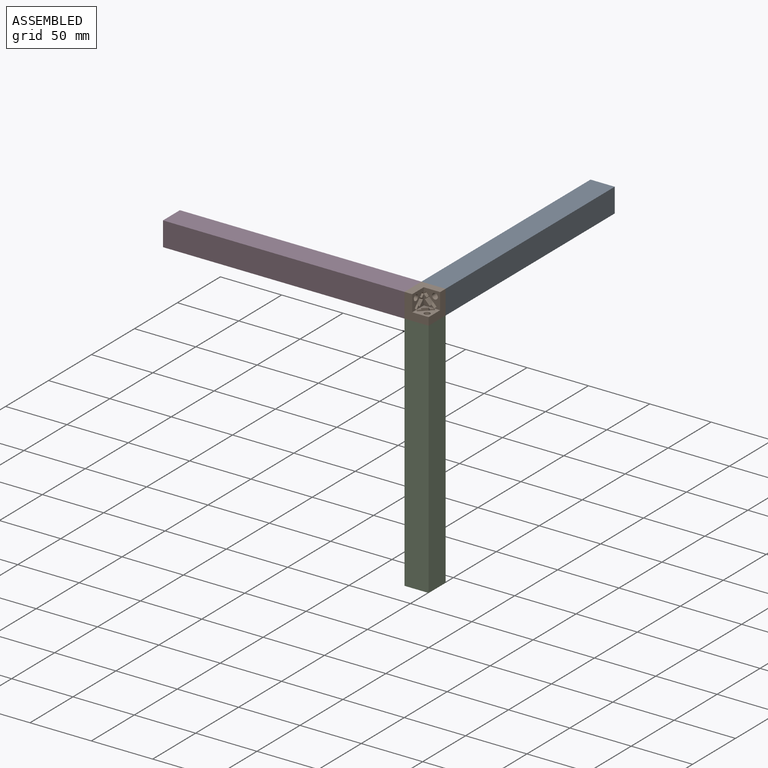
[diagram: assembled view]
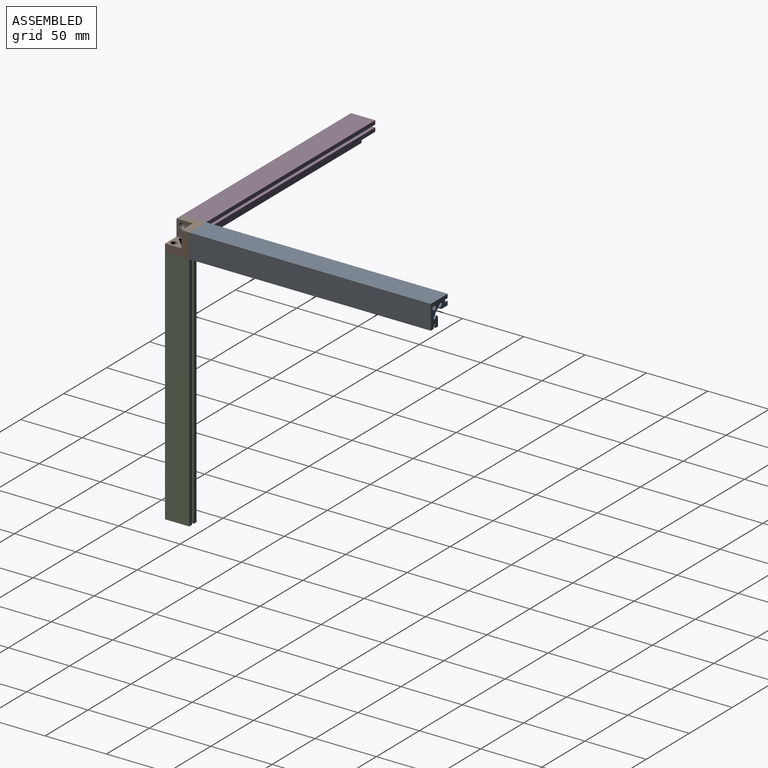
[diagram: assembled view, second angle]
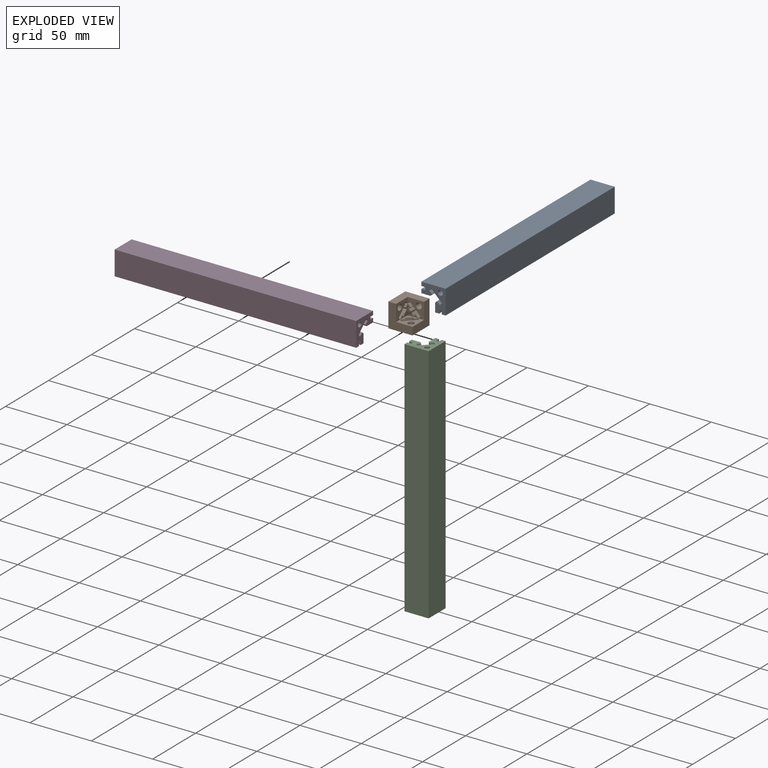
[diagram: exploded view]
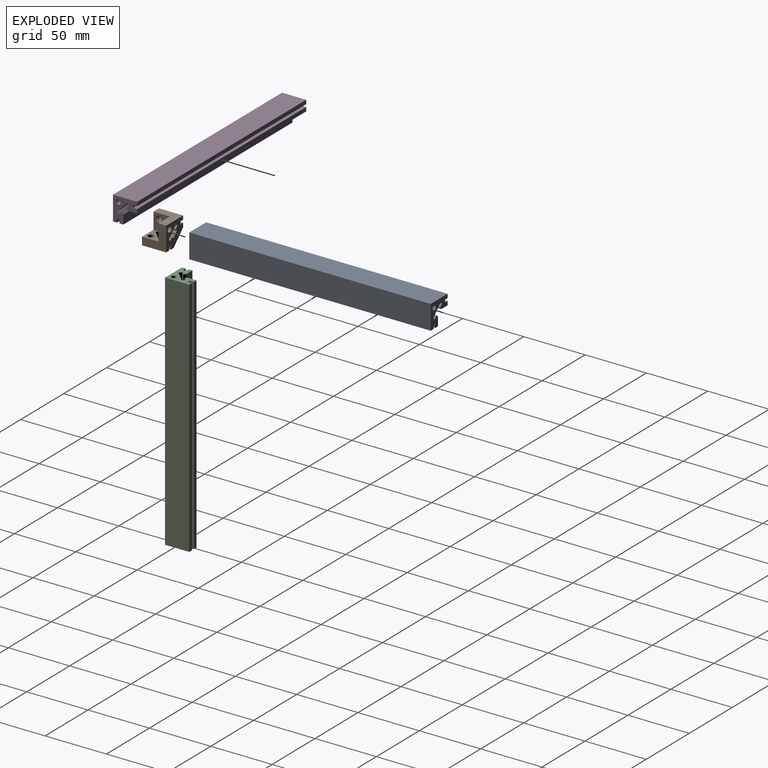
[diagram: exploded view, second angle]
ASSEMBLY  parts=4 mates=3
PART A: 24 faces, bbox 19.7x19.7x196.9 mm
  f0: plane 196.85x1.8mm, normal (-0.71,-0.71,0), area 500mm2, adj f1,f21,f22,f23
  f1: plane 196.85x8.62mm, normal (-0.71,0.71,0), area 2400mm2, adj f0,f2,f22,f23
  f2: plane 196.85x1.8mm, normal (0.71,0.71,0), area 500mm2, adj f1,f3,f22,f23
  f3: plane 196.85x2.34mm, normal (0.71,-0.71,0), area 650mm2, adj f2,f4,f22,f23
  f4: plane 196.85x1.44mm, normal (0.71,0.71,0), area 400mm2, adj f3,f5,f22,f23
  f5: plane 196.85x7.25mm, normal (0,1,0), area 1426.8mm2, adj f4,f6,f22,f23
  f6: plane 196.85x3.18mm, normal (-1,0,0), area 625mm2, adj f5,f7,f22,f23
  f7: plane 196.85x3.18mm, normal (0,-1,0), area 625mm2, adj f6,f8,f22,f23
  f8: plane 196.85x2.16mm, normal (-1,0,0), area 425mm2, adj f7,f9,f22,f23
  f9: plane 196.85x3.18mm, normal (0,1,0), area 625mm2, adj f8,f10,f22,f23
  f10: plane 196.85x3.18mm, normal (-1,0,0), area 625mm2, adj f9,f11,f22,f23
  f11: plane 196.85x19.71mm, normal (0,-1,0), area 3879.6mm2, adj f10,f12,f22,f23
  f12: plane 196.85x19.71mm, normal (1,0,0), area 3879.6mm2, adj f11,f13,f22,f23
  f13: plane 196.85x3.18mm, normal (0,1,0), area 625mm2, adj f12,f14,f22,f23
  f14: plane 196.85x3.18mm, normal (-1,0,0), area 625mm2, adj f13,f15,f22,f23
  f15: plane 196.85x2.16mm, normal (0,1,0), area 425mm2, adj f14,f16,f22,f23
  f16: plane 196.85x3.18mm, normal (1,0,0), area 625mm2, adj f15,f17,f22,f23
  f17: plane 196.85x3.18mm, normal (0,1,0), area 625mm2, adj f16,f18,f22,f23
  f18: plane 196.85x7.25mm, normal (-1,0,0), area 1426.8mm2, adj f17,f19,f22,f23
  f19: plane 196.85x1.44mm, normal (-0.71,-0.71,0), area 400mm2, adj f18,f21,f22,f23
  f20: cylinder r=1.98mm len=196.85mm, axis (0,0,-1), area 2454.4mm2, adj f22,f23
  f21: plane 196.85x2.34mm, normal (0.71,-0.71,0), area 650mm2, adj f0,f19,f22,f23
  f22: plane 19.71x19.71mm, normal (0,0,1), area 202.4mm2, adj f0,f1,f2,f3,f4,f5,f6,f7
  f23: plane 19.71x19.71mm, normal (0,0,-1), area 202.4mm2, adj f0,f1,f2,f3,f4,f5,f6,f7
PART B: 52 faces, bbox 19.7x19.7x19.7 mm
  f0: plane 19.71x19.71mm, normal (-1,0,0), area 253.2mm2, adj f3,f4,f7,f18,f25,f26,f28,f38
  f1: plane 13.36x13.36mm, normal (1,0,0), area 92.5mm2, adj f5,f7,f18,f19,f43,f48,f49,f51
  f2: plane 8.62x8.62mm, normal (1,0,0), area 25.8mm2, adj f6,f20,f44,f45,f46,f47,f50
  f3: plane 19.71x19.71mm, normal (0,1,0), area 253.2mm2, adj f0,f4,f7,f17,f21,f23,f24,f29
  f4: plane 19.71x19.71mm, normal (0,0,1), area 253.2mm2, adj f0,f3,f8,f9,f10,f11,f12,f13
  f5: plane 13.36x13.36mm, normal (0,-1,0), area 92.5mm2, adj f1,f7,f17,f19,f29,f30,f36,f37
  f6: plane 8.62x8.62mm, normal (0,-1,0), area 25.8mm2, adj f2,f20,f31,f32,f33,f34,f35
  f7: plane 19.71x19.71mm, normal (0,0,-1), area 210mm2, adj f0,f1,f3,f5,f17,f18
  f8: plane 6.35x1.8mm, normal (-0.71,-0.71,0), area 16.1mm2, adj f4,f9,f16,f19
  f9: plane 8.62x8.62mm, normal (-0.71,0.71,0), area 77.4mm2, adj f4,f8,f10,f19
  f10: plane 6.35x1.8mm, normal (0.71,0.71,0), area 16.1mm2, adj f4,f9,f11,f19
  f11: plane 6.35x2.34mm, normal (0.71,-0.71,0), area 21mm2, adj f4,f10,f12,f20
  f12: plane 6.35x1.44mm, normal (0.71,0.71,0), area 12.9mm2, adj f4,f11,f13,f20
  f13: plane 6.35x3.95mm, normal (0.71,-0.71,0), area 35.5mm2, adj f4,f12,f14,f20
  f14: plane 6.35x1.44mm, normal (-0.71,-0.71,0), area 12.9mm2, adj f4,f13,f16,f20
  f15: cylinder r=2.38mm len=6.35mm, axis (0,0,-1), area 95mm2, adj f4,f19
  f16: plane 6.35x2.34mm, normal (0.71,-0.71,0), area 21mm2, adj f4,f8,f14,f20
  f17: plane 19.71x19.71mm, normal (1,0,0), area 210mm2, adj f3,f4,f5,f7,f18,f19
  f18: plane 19.71x19.71mm, normal (0,-1,0), area 210mm2, adj f0,f1,f4,f7,f17,f19
  f19: plane 13.36x13.36mm, normal (0,0,-1), area 92.5mm2, adj f1,f5,f8,f9,f10,f15,f17,f18
  f20: plane 8.62x8.62mm, normal (0,0,-1), area 25.8mm2, adj f2,f6,f11,f12,f13,f14,f16
  f21: plane 3.18x3.18mm, normal (1,0,0), area 10.1mm2, adj f3,f4,f22,f24
  f22: plane 3.18x2.16mm, normal (0,1,0), area 6.9mm2, adj f4,f21,f23,f24
  f23: plane 3.18x3.18mm, normal (-1,0,0), area 10.1mm2, adj f3,f4,f22,f24
  f24: plane 3.18x2.16mm, normal (0,0,1), area 6.9mm2, adj f3,f21,f22,f23
  f25: plane 3.18x3.18mm, normal (0,-1,0), area 10.1mm2, adj f0,f4,f27,f28
  f26: plane 3.18x3.18mm, normal (0,1,0), area 10.1mm2, adj f0,f4,f27,f28
  f27: plane 3.18x2.16mm, normal (-1,0,0), area 6.9mm2, adj f4,f25,f26,f28
  f28: plane 3.18x2.16mm, normal (0,0,1), area 6.9mm2, adj f0,f25,f26,f27
  f29: plane 8.62x8.62mm, normal (-0.71,0,0.71), area 77.4mm2, adj f3,f5,f30,f36
  f30: plane 6.35x1.8mm, normal (-0.71,0,-0.71), area 16.1mm2, adj f3,f5,f29,f31
  f31: plane 6.35x2.34mm, normal (0.71,0,-0.71), area 21mm2, adj f3,f6,f30,f32
  f32: plane 6.35x1.44mm, normal (-0.71,0,-0.71), area 12.9mm2, adj f3,f6,f31,f33
  f33: plane 6.35x3.95mm, normal (0.71,0,-0.71), area 35.5mm2, adj f3,f6,f32,f34
  f34: plane 6.35x1.44mm, normal (0.71,0,0.71), area 12.9mm2, adj f3,f6,f33,f35
  f35: plane 6.35x2.34mm, normal (0.71,0,-0.71), area 21mm2, adj f3,f6,f34,f36
  f36: plane 6.35x1.8mm, normal (0.71,0,0.71), area 16.1mm2, adj f3,f5,f29,f35
  f37: cylinder r=2.38mm len=6.35mm, axis (0,-1,0), area 95mm2, adj f3,f5
  f38: plane 3.18x3.18mm, normal (0,0,-1), area 10.1mm2, adj f0,f3,f39,f41
  f39: plane 3.18x2.16mm, normal (-1,0,0), area 6.9mm2, adj f3,f38,f40,f41
  f40: plane 3.18x3.18mm, normal (0,0,1), area 10.1mm2, adj f0,f3,f39,f41
  f41: plane 3.18x2.16mm, normal (0,1,0), area 6.9mm2, adj f0,f38,f39,f40
  f42: plane 11.07x11.07mm, normal (-0.58,0.58,0.58), area 106.2mm2, adj f0,f3,f4
  f43: plane 8.62x8.62mm, normal (0,0.71,0.71), area 77.4mm2, adj f0,f1,f48,f49
  f44: plane 6.35x1.44mm, normal (0,-0.71,0.71), area 12.9mm2, adj f0,f2,f45,f50
  f45: plane 6.35x3.95mm, normal (0,-0.71,-0.71), area 35.5mm2, adj f0,f2,f44,f46
  f46: plane 6.35x1.44mm, normal (0,0.71,-0.71), area 12.9mm2, adj f0,f2,f45,f47
  f47: plane 6.35x2.34mm, normal (0,-0.71,-0.71), area 21mm2, adj f0,f2,f46,f48
  f48: plane 6.35x1.8mm, normal (0,0.71,-0.71), area 16.1mm2, adj f0,f1,f43,f47
  f49: plane 6.35x1.8mm, normal (0,-0.71,0.71), area 16.1mm2, adj f0,f1,f43,f50
  f50: plane 6.35x2.34mm, normal (0,-0.71,-0.71), area 21mm2, adj f0,f2,f44,f49
  f51: cylinder r=2.38mm len=6.35mm, axis (1,0,0), area 95mm2, adj f0,f1
PART C: same geometry as A
PART D: same geometry as A
PLACE A rot(axis=(0.58,-0.58,0.58),120deg) t=(-147.74,198.24,218.37)mm
PLACE B rot(axis=(0,-1,0),90deg) t=(-137.25,-7.84,218.37)mm
PLACE C t=(-147.74,-7.84,12.29)mm
PLACE D rot(axis=(-0.58,0.58,-0.58),120deg) t=(-353.81,-7.84,218.37)mm
MATE fastened C.f22 <-> D.f13  axis (0,0,1) through (-156.96,-18.32,209.14)mm
MATE fastened A.f22 <-> D.f10  axis (0,-1,0) through (-156.96,1.39,228.85)mm
MATE fastened B.f37 <-> A.f20  axis (0,1,0) through (-141.5,1.39,224.6)mm
